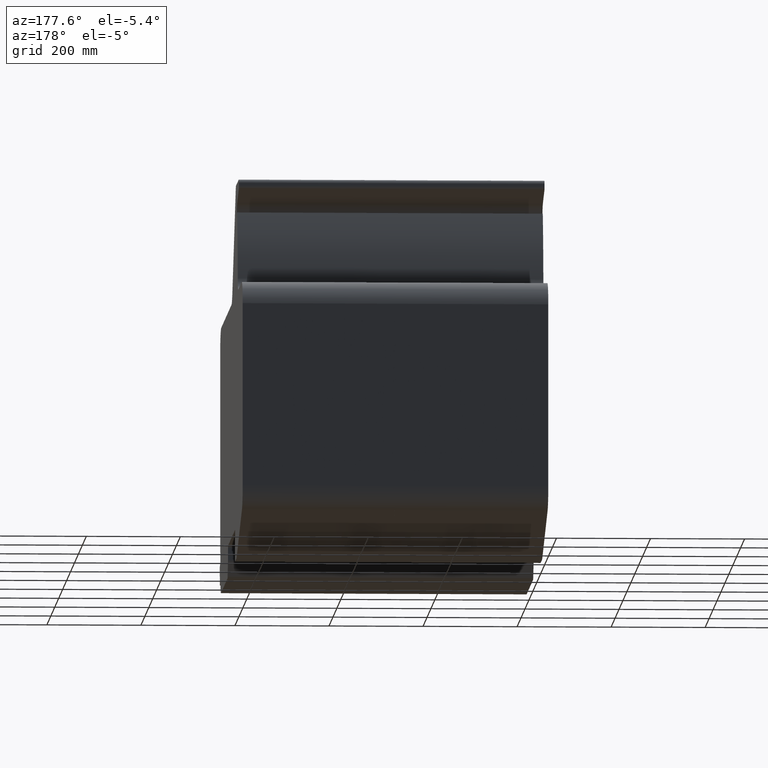
[diagram: clean part render]
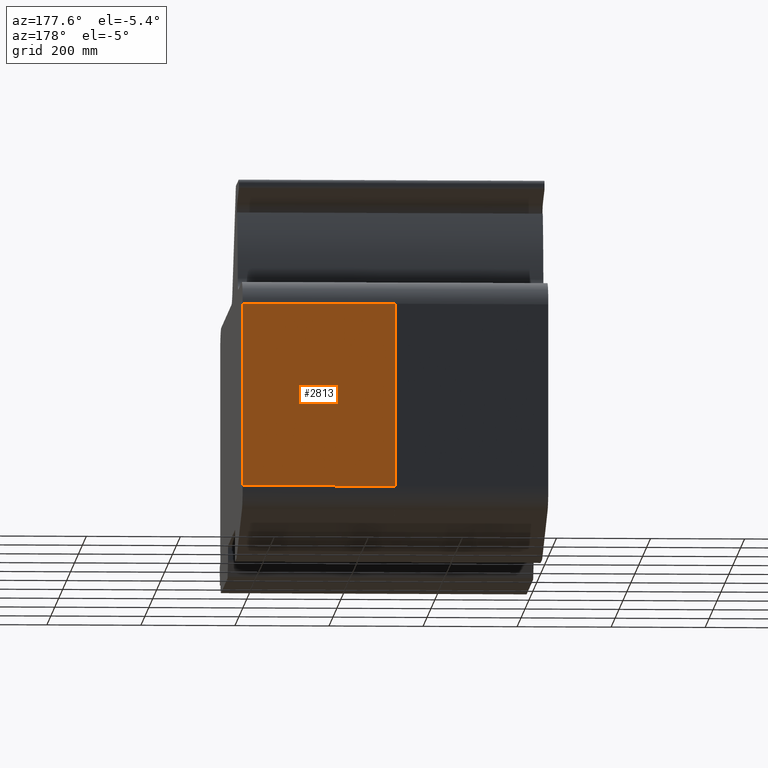
[diagram: same view with one face highlighted and labeled with its STEP entity id]
A machine part, auxiliary view. The second image highlights one B-rep face of the part: STEP entity #2813.
In plain terms, the highlighted planar face has unit normal (0, 1, 0).
Its self-contained STEP definition (entity closure, byte-faithful):
#2755=CARTESIAN_POINT('',(650.00000000000023,385.0,447.50000000000011));
#2756=VERTEX_POINT('',#2755);
#2764=CARTESIAN_POINT('',(325.00000000000011,385.0,447.50000000000011));
#2765=VERTEX_POINT('',#2764);
#2766=CARTESIAN_POINT('',(325.00000000000011,385.0,447.50000000000011));
#2767=DIRECTION('',(1.0,0.0,0.0));
#2768=VECTOR('',#2767,325.00000000000011);
#2769=LINE('',#2766,#2768);
#2770=EDGE_CURVE('',#2765,#2756,#2769,.T.);
#2783=CARTESIAN_POINT('',(325.00000000000011,385.0,447.50000000000011));
#2784=DIRECTION('',(0.0,1.0,0.0));
#2785=DIRECTION('',(0.0,0.0,1.0));
#2786=AXIS2_PLACEMENT_3D('',#2783,#2784,#2785);
#2787=PLANE('',#2786);
#2788=CARTESIAN_POINT('',(650.00000000000023,385.0,58.28199216629983));
#2789=VERTEX_POINT('',#2788);
#2790=CARTESIAN_POINT('',(650.00000000000023,385.0,447.50000000000011));
#2791=DIRECTION('',(0.0,0.0,-1.0));
#2792=VECTOR('',#2791,389.21800783370031);
#2793=LINE('',#2790,#2792);
#2794=EDGE_CURVE('',#2756,#2789,#2793,.T.);
#2795=ORIENTED_EDGE('',*,*,#2794,.T.);
#2796=CARTESIAN_POINT('',(325.00000000000011,385.0,58.28199216629983));
#2797=VERTEX_POINT('',#2796);
#2798=CARTESIAN_POINT('',(325.00000000000011,385.0,58.28199216629983));
#2799=DIRECTION('',(1.0,0.0,0.0));
#2800=VECTOR('',#2799,325.00000000000011);
#2801=LINE('',#2798,#2800);
#2802=EDGE_CURVE('',#2797,#2789,#2801,.T.);
#2803=ORIENTED_EDGE('',*,*,#2802,.F.);
#2804=CARTESIAN_POINT('',(325.00000000000011,385.0,447.50000000000011));
#2805=DIRECTION('',(0.0,0.0,-1.0));
#2806=VECTOR('',#2805,389.21800783370031);
#2807=LINE('',#2804,#2806);
#2808=EDGE_CURVE('',#2765,#2797,#2807,.T.);
#2809=ORIENTED_EDGE('',*,*,#2808,.F.);
#2810=ORIENTED_EDGE('',*,*,#2770,.T.);
#2811=EDGE_LOOP('',(#2795,#2803,#2809,#2810));
#2812=FACE_OUTER_BOUND('',#2811,.T.);
#2813=ADVANCED_FACE('',(#2812),#2787,.T.);